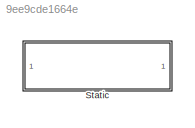
MODEL slx_9ee9cde1664e
KIND model
CONFIG AbsTol = auto
CONFIG EnableMultiTasking = off
CONFIG FixedStep = auto
CONFIG MaxStep = auto
CONFIG MinStep = auto
CONFIG RelTol = 1e-3
CONFIG SampleTimeConstraint = Unconstrained
CONFIG SolverName = VariableStepAuto
CONFIG StartTime = 0.0
CONFIG StopTime = 10.0
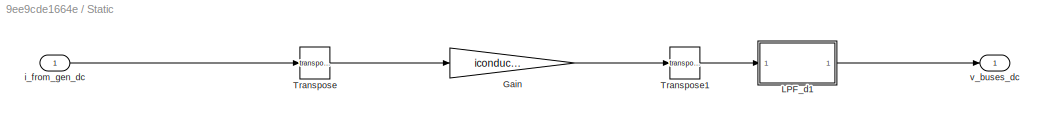
BLOCK [SubSystem] Static
  VariantControl = Static
BLOCK [Gain] Static/Gain
  Gain = iconductance_matrix
  Multiplication = Matrix(K*u)
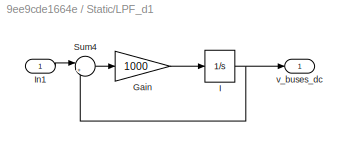
BLOCK [SubSystem] Static/LPF_d1
BLOCK [Gain] Static/LPF_d1/Gain
  Gain = 1000
BLOCK [Integrator] Static/LPF_d1/I
  InitialCondition = DC.v
BLOCK [Inport] Static/LPF_d1/In1
BLOCK [Sum] Static/LPF_d1/Sum4
  Inputs = |+-
BLOCK [Outport] Static/LPF_d1/v_buses_dc
BLOCK [Math] Static/Transpose
  Operator = transpose
BLOCK [Math] Static/Transpose1
  Operator = transpose
BLOCK [Inport] Static/i_from_gen_dc
BLOCK [Outport] Static/v_buses_dc
LINE Static/Gain:1 -> Static/Transpose1:1
LINE Static/LPF_d1/Gain:1 -> Static/LPF_d1/I:1
NET Static/LPF_d1/I:1 -> Static/LPF_d1/Sum4:2, Static/LPF_d1/v_buses_dc:1
LINE Static/LPF_d1/In1:1 -> Static/LPF_d1/Sum4:1
LINE Static/LPF_d1/Sum4:1 -> Static/LPF_d1/Gain:1
LINE Static/LPF_d1:1 -> Static/v_buses_dc:1
LINE Static/Transpose1:1 -> Static/LPF_d1:1
LINE Static/Transpose:1 -> Static/Gain:1
LINE Static/i_from_gen_dc:1 -> Static/Transpose:1
note: NET lines group one-source signal fan-out (src -> all destinations, sorted); 1:1 wires keep LINE
